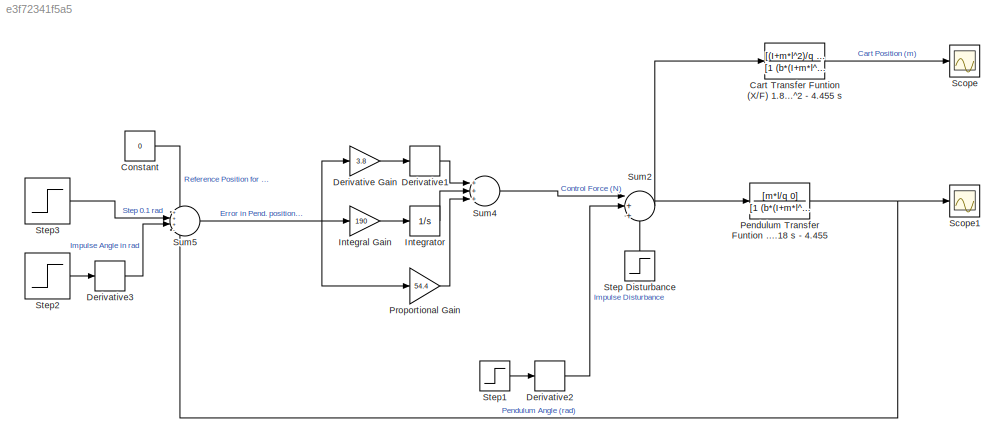
MODEL slx_e3f72341f5a5
KIND model
CONFIG AbsTol = auto
CONFIG EnableMultiTasking = off
CONFIG FixedStep = auto
CONFIG MaxStep = auto
CONFIG MinStep = auto
CONFIG RelTol = 1e-3
CONFIG SampleTimeConstraint = Unconstrained
CONFIG Solver = VariableStepAuto
CONFIG SolverName = VariableStepAuto
CONFIG StartTime = 0.0
CONFIG StopTime = 5
BLOCK [TransferFcn] Cart Transfer Funtion (X//F) 1.818 s^2 - 44.55 -------------------------------------- s^4 + 0.1818 s^3 - 31.18 s^2 - 4.455 s 
  Denominator = [1 (b*(I+m*l^2))/q -((M+m)*m*g*l)/q -(b*m*g*l)/q 0]
  Numerator = [(I+m*l^2)/q 0 -g*m*l/q]
BLOCK [Constant] Constant
  Value = 0
BLOCK [Gain] Derivative Gain
  Gain = 3.8
  OutDataTypeStr = Inherit: Inherit via internal rule
  ParamDataTypeStr = Inherit: Inherit via internal rule
  SaturateOnIntegerOverflow = off
BLOCK [Derivative] Derivative1
BLOCK [Derivative] Derivative2
BLOCK [Derivative] Derivative3
BLOCK [Gain] Integral Gain
  Gain = 190
  OutDataTypeStr = Inherit: Inherit via internal rule
  ParamDataTypeStr = Inherit: Inherit via internal rule
  SaturateOnIntegerOverflow = off
BLOCK [Integrator] Integrator 
  Ports = [1, 1]
BLOCK [TransferFcn] Pendulum Transfer Funtion 4.545 s ---------------------------------- s^3 + 0.1818 s^2 - 31.18 s - 4.455
  Denominator = [1 (b*(I+m*l^2))/q -((M+m)*m*g*l)/q -(b*m*g*l)/q]
  Numerator = [m*l/q 0]
BLOCK [Gain] Proportional Gain
  Gain = 54.4
  OutDataTypeStr = Inherit: Inherit via internal rule
  ParamDataTypeStr = Inherit: Inherit via internal rule
  SaturateOnIntegerOverflow = off
BLOCK [Scope] Scope
  Floating = off
  NumInputPorts = 1
  Ports = [1]
  ScopeSpecificationString = Simulink.scopes.TimeScopeBlockCfg('CurrentConfiguration', extmgr.ConfigurationSet(extmgr.Configuration('Core','General UI',true),extmgr.Configuration('Core','Source UI',true),extmgr.Configuration('Sources','WiredSimulink',true),extmgr.Configuration('Visuals','Time Domain',true,'SerializedDisplays',{struct('MinYLimReal','-10522352954357194.00000','MaxYLimReal','11789325718385964.00000','YLabelReal'...<+1490ch>
BLOCK [Scope] Scope1
  Floating = off
  NumInputPorts = 1
  Ports = [1]
  ScopeSpecificationString = Simulink.scopes.TimeScopeBlockCfg('CurrentConfiguration', extmgr.ConfigurationSet(extmgr.Configuration('Core','General UI',true),extmgr.Configuration('Core','Source UI',true),extmgr.Configuration('Sources','WiredSimulink',true,'DataLoggingVariableName','ScopeData1'),extmgr.Configuration('Visuals','Time Domain',true,'SerializedDisplays',{struct('MinYLimReal','-25148361675468228.00000','MaxYLimReal'...<+1533ch>
BLOCK [Step] Step Disturbance
  After = 0
  SampleTime = 0
  Time = 0
BLOCK [Step] Step1
  After = 0
  SampleTime = 0
  Time = 0
BLOCK [Step] Step2
  After = 0
  SampleTime = 0
  Time = 0
BLOCK [Step] Step3
  After = 0
  SampleTime = 0
  Time = 0
BLOCK [Sum] Sum2
  IconShape = round
  InputSameDT = off
  Inputs = |+++
  OutDataTypeStr = Inherit: Inherit via internal rule
  Ports = [3, 1]
  SaturateOnIntegerOverflow = off
BLOCK [Sum] Sum4
  InputSameDT = off
  Inputs = +++
  OutDataTypeStr = Inherit: Inherit via internal rule
  Ports = [3, 1]
  SaturateOnIntegerOverflow = off
BLOCK [Sum] Sum5
  IconShape = round
  InputSameDT = off
  Inputs = +++-
  OutDataTypeStr = Inherit: Inherit via internal rule
  Ports = [4, 1]
  SaturateOnIntegerOverflow = off
LINE Cart Transfer Funtion (X//F) 1.818 s^2 - 44.55 -------------------------------------- s^4 + 0.1818 s^3 - 31.18 s^2 - 4.455 s :1 -> Scope:1
LINE Constant:1 -> Sum5:1
LINE Derivative Gain:1 -> Derivative1:1
LINE Derivative1:1 -> Sum4:1
LINE Derivative2:1 -> Sum2:2
LINE Derivative3:1 -> Sum5:3
LINE Integral Gain:1 -> Integrator :1
LINE Integrator :1 -> Sum4:2
NET Pendulum Transfer Funtion 4.545 s ---------------------------------- s^3 + 0.1818 s^2 - 31.18 s - 4.455:1 -> Scope1:1, Sum5:4
LINE Proportional Gain:1 -> Sum4:3
LINE Step Disturbance:1 -> Sum2:3
LINE Step1:1 -> Derivative2:1
LINE Step2:1 -> Derivative3:1
LINE Step3:1 -> Sum5:2
NET Sum2:1 -> Cart Transfer Funtion (X//F) 1.818 s^2 - 44.55 -------------------------------------- s^4 + 0.1818 s^3 - 31.18 s^2 - 4.455 s :1, Pendulum Transfer Funtion 4.545 s ---------------------------------- s^3 + 0.1818 s^2 - 31.18 s - 4.455:1
LINE Sum4:1 -> Sum2:1
NET Sum5:1 -> Derivative Gain:1, Integral Gain:1, Proportional Gain:1
note: NET lines group one-source signal fan-out (src -> all destinations, sorted); 1:1 wires keep LINE
